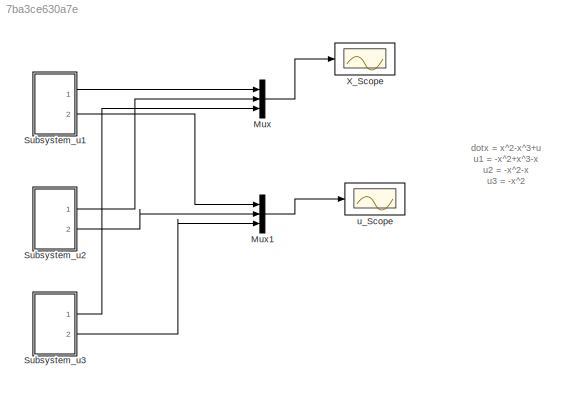
MODEL slx_7ba3ce630a7e
KIND model
CONFIG AbsTol = auto
CONFIG EnableMultiTasking = off
CONFIG FixedStep = auto
CONFIG MaxStep = auto
CONFIG MinStep = auto
CONFIG RelTol = 1e-3
CONFIG SampleTimeConstraint = Unconstrained
CONFIG SolverName = VariableStepAuto
CONFIG StartTime = 0.0
CONFIG StopTime = 1000
BLOCK [Mux] Mux
  DisplayOption = bar
  Inputs = 3
  Ports = [3, 1]
BLOCK [Mux] Mux1
  DisplayOption = bar
  Inputs = 3
  Ports = [3, 1]
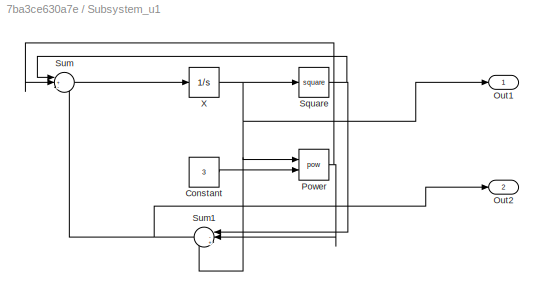
BLOCK [SubSystem] Subsystem_u1
  Ports = [0, 2]
  RequestExecContextInheritance = off
BLOCK [Constant] Subsystem_u1/Constant
  Value = 3
BLOCK [Outport] Subsystem_u1/Out1
BLOCK [Outport] Subsystem_u1/Out2
  Port = 2
BLOCK [Math] Subsystem_u1/Power
  Operator = pow
  Ports = [2, 1]
BLOCK [Math] Subsystem_u1/Square
  Operator = square
  Ports = [1, 1]
BLOCK [Sum] Subsystem_u1/Sum
  Inputs = |+-+
  Ports = [3, 1]
BLOCK [Sum] Subsystem_u1/Sum1
  Inputs = |-+-
  NameLocation = top
  Ports = [3, 1]
BLOCK [Integrator] Subsystem_u1/X
  InitialCondition = 10
  Ports = [1, 1]
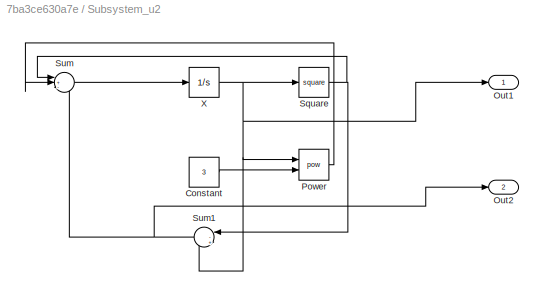
BLOCK [SubSystem] Subsystem_u2
  Ports = [0, 2]
  RequestExecContextInheritance = off
BLOCK [Constant] Subsystem_u2/Constant
  Value = 3
BLOCK [Outport] Subsystem_u2/Out1
BLOCK [Outport] Subsystem_u2/Out2
  Port = 2
BLOCK [Math] Subsystem_u2/Power
  Operator = pow
  Ports = [2, 1]
BLOCK [Math] Subsystem_u2/Square
  Operator = square
  Ports = [1, 1]
BLOCK [Sum] Subsystem_u2/Sum
  Inputs = |+-+
  Ports = [3, 1]
BLOCK [Sum] Subsystem_u2/Sum1
  Inputs = |-+-
  NameLocation = top
  Ports = [3, 1]
BLOCK [Integrator] Subsystem_u2/X
  InitialCondition = 10
  Ports = [1, 1]
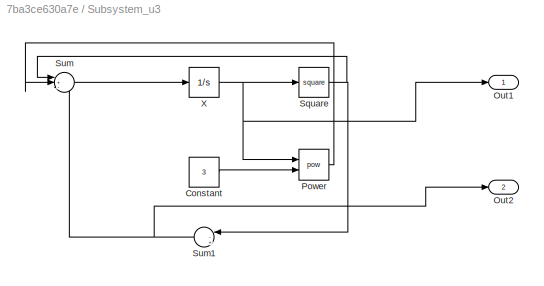
BLOCK [SubSystem] Subsystem_u3
  Ports = [0, 2]
  RequestExecContextInheritance = off
BLOCK [Constant] Subsystem_u3/Constant
  Value = 3
BLOCK [Outport] Subsystem_u3/Out1
BLOCK [Outport] Subsystem_u3/Out2
  Port = 2
BLOCK [Math] Subsystem_u3/Power
  Operator = pow
  Ports = [2, 1]
BLOCK [Math] Subsystem_u3/Square
  Operator = square
  Ports = [1, 1]
BLOCK [Sum] Subsystem_u3/Sum
  Inputs = |+-+
  Ports = [3, 1]
BLOCK [Sum] Subsystem_u3/Sum1
  Inputs = |-+-
  NameLocation = top
  Ports = [3, 1]
BLOCK [Integrator] Subsystem_u3/X
  InitialCondition = 10
  Ports = [1, 1]
BLOCK [Scope] X_Scope
  Floating = off
  NumInputPorts = 1
  Ports = [1]
  ScopeSpecificationString = Simulink.scopes.TimeScopeBlockCfg('CurrentConfiguration', extmgr.ConfigurationSet(extmgr.Configuration('Core','General UI',true),extmgr.Configuration('Core','Source UI',true),extmgr.Configuration('Sources','WiredSimulink',true),extmgr.Configuration('Visuals','Time Domain',true,'SerializedDisplays',{struct('MinYLimReal','-0.0772','MaxYLimReal','0.43696','YLabelReal','','MinYLimMag','0.00000','MaxYL...<+1448ch>
BLOCK [Scope] u_Scope
  Floating = off
  NumInputPorts = 1
  Ports = [1]
  ScopeSpecificationString = Simulink.scopes.TimeScopeBlockCfg('CurrentConfiguration', extmgr.ConfigurationSet(extmgr.Configuration('Core','General UI',true),extmgr.Configuration('Core','Source UI',true),extmgr.Configuration('Sources','WiredSimulink',true,'DataLoggingVariableName','ScopeData1'),extmgr.Configuration('Visuals','Time Domain',true,'SerializedDisplays',{struct('MinYLimReal','-235.00000','MaxYLimReal','1015.00000',...<+1530ch>
ANNOTATION (root): dotx = x^2-x^3+u u1 = -x^2+x^3-x u2 = -x^2-x u3 = -x^2
LINE Mux1:1 -> u_Scope:1
LINE Mux:1 -> X_Scope:1
LINE Subsystem_u1/Constant:1 -> Subsystem_u1/Power:2
NET Subsystem_u1/Power:1 -> Subsystem_u1/Sum1:2, Subsystem_u1/Sum:2
NET Subsystem_u1/Square:1 -> Subsystem_u1/Sum1:1, Subsystem_u1/Sum:1
NET Subsystem_u1/Sum1:1 -> Subsystem_u1/Out2:1, Subsystem_u1/Sum:3
LINE Subsystem_u1/Sum:1 -> Subsystem_u1/X:1
NET Subsystem_u1/X:1 -> Subsystem_u1/Out1:1, Subsystem_u1/Power:1, Subsystem_u1/Square:1, Subsystem_u1/Sum1:3
LINE Subsystem_u1:1 -> Mux:1
LINE Subsystem_u1:2 -> Mux1:1
LINE Subsystem_u2/Constant:1 -> Subsystem_u2/Power:2
LINE Subsystem_u2/Power:1 -> Subsystem_u2/Sum:2
NET Subsystem_u2/Square:1 -> Subsystem_u2/Sum1:1, Subsystem_u2/Sum:1
NET Subsystem_u2/Sum1:1 -> Subsystem_u2/Out2:1, Subsystem_u2/Sum:3
LINE Subsystem_u2/Sum:1 -> Subsystem_u2/X:1
NET Subsystem_u2/X:1 -> Subsystem_u2/Out1:1, Subsystem_u2/Power:1, Subsystem_u2/Square:1, Subsystem_u2/Sum1:3
LINE Subsystem_u2:1 -> Mux:2
LINE Subsystem_u2:2 -> Mux1:2
LINE Subsystem_u3/Constant:1 -> Subsystem_u3/Power:2
LINE Subsystem_u3/Power:1 -> Subsystem_u3/Sum:2
NET Subsystem_u3/Square:1 -> Subsystem_u3/Sum1:1, Subsystem_u3/Sum:1
NET Subsystem_u3/Sum1:1 -> Subsystem_u3/Out2:1, Subsystem_u3/Sum:3
LINE Subsystem_u3/Sum:1 -> Subsystem_u3/X:1
NET Subsystem_u3/X:1 -> Subsystem_u3/Out1:1, Subsystem_u3/Power:1, Subsystem_u3/Square:1
LINE Subsystem_u3:1 -> Mux:3
LINE Subsystem_u3:2 -> Mux1:3
note: NET lines group one-source signal fan-out (src -> all destinations, sorted); 1:1 wires keep LINE
